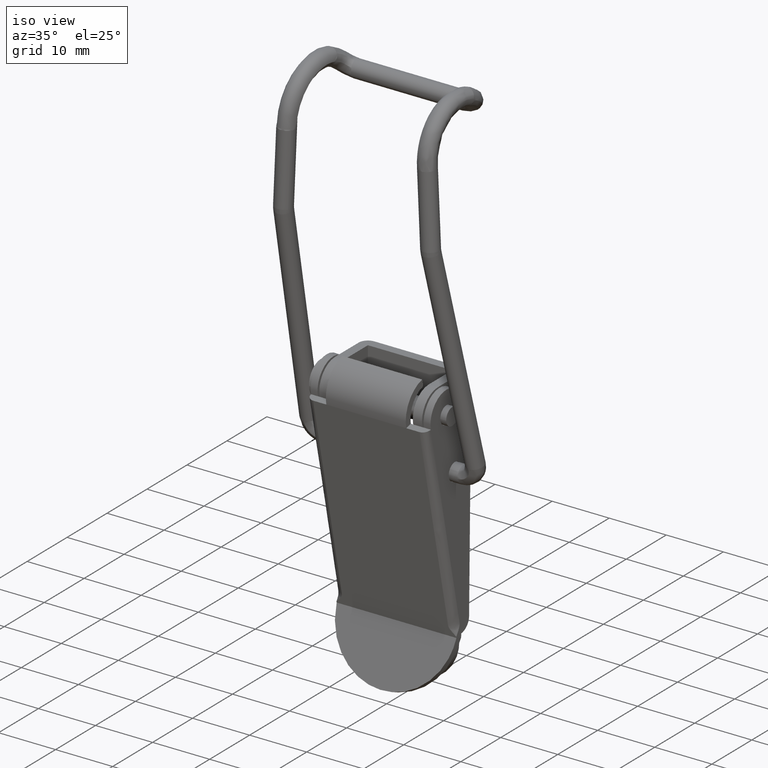
[diagram: clean part render]
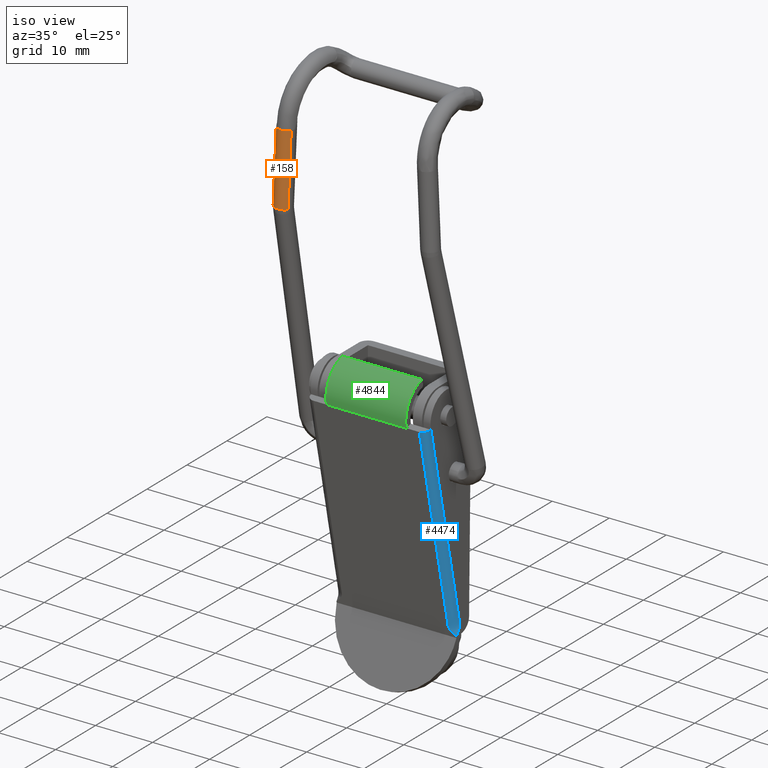
[diagram: same view with three faces highlighted in distinct colors, each labeled with its STEP entity id]
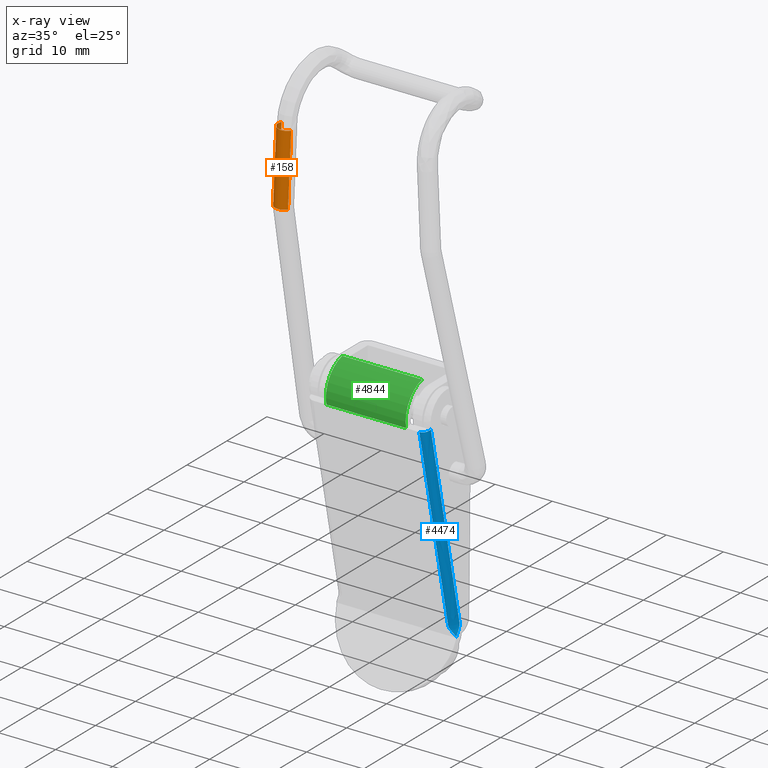
[diagram: x-ray of the same camera — body ghosted, the three highlighted faces saturated]
A machine part, iso view with three faces highlighted in distinct colors.
The next image is the same camera in x-ray (body ghosted, the three faces saturated) — at least one of them is partly hidden behind the body in this view.
Their STEP definitions:

[orange] entity #158 — the highlighted face is a freeform B-spline surface patch.
#44=CARTESIAN_POINT('',(-14.250537708566645,-6.728657390989591,29.514747356932155));
#45=CARTESIAN_POINT('',(-14.870743056928660,-8.001910873538105,29.541739741213647));
#46=CARTESIAN_POINT('',(-13.636246804663941,-8.694507485925259,29.488012379262980));
#47=CARTESIAN_POINT('',(-12.329007163122082,-9.427915745082894,29.431119102148088));
#48=CARTESIAN_POINT('',(-11.596292506796701,-8.119438643487545,29.399230122756911));
#49=CARTESIAN_POINT('',(-13.670756794046270,-6.728657390989591,42.836402099018599));
#50=CARTESIAN_POINT('',(-14.290962142408276,-8.001910873538105,42.863394483300091));
#51=CARTESIAN_POINT('',(-13.056465890143571,-8.694507485925259,42.809667121349413));
#52=CARTESIAN_POINT('',(-11.749226248601705,-9.427915745082894,42.752773844234532));
#53=CARTESIAN_POINT('',(-11.016511592276320,-8.119438643487545,42.720884864843342));
#61=(BOUNDED_SURFACE()B_SPLINE_SURFACE(2,1,((#44,#49),(#45,#50),(#46,#51),(#47,#52),(#48,#53)),.UNSPECIFIED.,.F.,.F.,.U.)B_SPLINE_SURFACE_WITH_KNOTS((3,2,3),(2,2),(3.204424506661589,4.712388980384690,6.283185307179586),(0.0,13.334265295703259),.UNSPECIFIED.)GEOMETRIC_REPRESENTATION_ITEM()RATIONAL_B_SPLINE_SURFACE(((0.977505800795127,0.977505800795127),(0.718822509939086,0.718822509939086),(1.0,1.0),(0.707106781186548,0.707106781186548),(1.0,1.0)))REPRESENTATION_ITEM('')SURFACE());
#62=CARTESIAN_POINT('',(-14.342784072439629,-7.752980337834663,29.836356073012880));
#63=VERTEX_POINT('',#62);
#64=CARTESIAN_POINT('',(-14.236741373962410,-6.728656900177660,29.831740915670078));
#65=VERTEX_POINT('',#64);
#66=CARTESIAN_POINT('',(-14.342784072439629,-7.752980337834663,29.836356073012880));
#67=CARTESIAN_POINT('',(-14.476769032806034,-7.221421898884255,29.842187324787322));
#68=CARTESIAN_POINT('',(-14.236741373962413,-6.728656900177660,29.831740915670071));
#76=(BOUNDED_CURVE()B_SPLINE_CURVE(2,(#66,#67,#68),.UNSPECIFIED.,.F.,.U.)B_SPLINE_CURVE_WITH_KNOTS((3,3),(0.500000000000000,0.612226226741794),.UNSPECIFIED.)CURVE()GEOMETRIC_REPRESENTATION_ITEM()RATIONAL_B_SPLINE_CURVE((1.0,0.868518796857231,0.855082708243936))REPRESENTATION_ITEM(''));
#77=EDGE_CURVE('',#63,#65,#76,.T.);
#78=ORIENTED_EDGE('',*,*,#77,.F.);
#79=CARTESIAN_POINT('',(-12.535323053613469,-8.843477984108532,29.757692316662279));
#80=VERTEX_POINT('',#79);
#81=CARTESIAN_POINT('',(-12.535323053613469,-8.843477984108532,29.757692316662283));
#82=CARTESIAN_POINT('',(-13.979240646903859,-9.195265914066582,29.820534049112268));
#83=CARTESIAN_POINT('',(-14.342784072439629,-7.752980337834663,29.836356073012880));
#91=(BOUNDED_CURVE()B_SPLINE_CURVE(2,(#81,#82,#83),.UNSPECIFIED.,.F.,.U.)B_SPLINE_CURVE_WITH_KNOTS((3,3),(0.251478909414957,0.500000000000000),.UNSPECIFIED.)CURVE()GEOMETRIC_REPRESENTATION_ITEM()RATIONAL_B_SPLINE_CURVE((0.996555199149981,0.708839431342068,1.0))REPRESENTATION_ITEM(''));
#92=EDGE_CURVE('',#80,#63,#91,.T.);
#93=ORIENTED_EDGE('',*,*,#92,.F.);
#94=CARTESIAN_POINT('',(-11.582495899211880,-8.119437729250720,29.716223672091690));
#95=VERTEX_POINT('',#94);
#96=CARTESIAN_POINT('',(-11.582495899211876,-8.119437729250720,29.716223672091690));
#97=CARTESIAN_POINT('',(-11.897817468302296,-8.682537873342625,29.729946996876105));
#98=CARTESIAN_POINT('',(-12.523133133203730,-8.840453889235842,29.757161790764670));
#99=CARTESIAN_POINT('',(-12.529221764380749,-8.841991500448366,29.757426778277129));
#100=CARTESIAN_POINT('',(-12.535323053613467,-8.843477984108532,29.757692316662279));
#108=(BOUNDED_CURVE()B_SPLINE_CURVE(2,(#96,#97,#98,#99,#100),.UNSPECIFIED.,.F.,.U.)B_SPLINE_CURVE_WITH_KNOTS((3,2,3),(0.120867736454969,0.250000000000000,0.251478909414957),.UNSPECIFIED.)CURVE()GEOMETRIC_REPRESENTATION_ITEM()RATIONAL_B_SPLINE_CURVE((0.853713433090381,0.848712142710515,1.0,0.998267349844479,0.996555199149981))REPRESENTATION_ITEM(''));
#109=EDGE_CURVE('',#95,#80,#108,.T.);
#110=ORIENTED_EDGE('',*,*,#109,.F.);
#111=CARTESIAN_POINT('',(-11.031982475052169,-8.119204663168635,42.375037008659461));
#112=VERTEX_POINT('',#111);
#113=CARTESIAN_POINT('',(-11.582495899211880,-8.119437729250720,29.716223672091690));
#114=CARTESIAN_POINT('',(-11.031982475052169,-8.119204663168635,42.375037008659461));
#115=QUASI_UNIFORM_CURVE('',1,(#113,#114),.UNSPECIFIED.,.F.,.U.);
#116=EDGE_CURVE('',#95,#112,#115,.T.);
#117=ORIENTED_EDGE('',*,*,#116,.T.);
#118=CARTESIAN_POINT('',(-13.791701619590119,-7.751084958118066,42.498604842236098));
#119=VERTEX_POINT('',#118);
#120=CARTESIAN_POINT('',(-11.031982475052169,-8.119204663168635,42.375037008659461));
#121=CARTESIAN_POINT('',(-11.038402842143389,-8.130660736163106,42.375208680900691));
#122=CARTESIAN_POINT('',(-11.044980448895490,-8.142030780206529,42.375388005488823));
#123=CARTESIAN_POINT('',(-11.252998500686861,-8.490455324821761,42.381164098016107));
#124=CARTESIAN_POINT('',(-11.591701600418091,-8.742642159629714,42.393532872679920));
#125=CARTESIAN_POINT('',(-12.352703676503280,-8.934706841463788,42.424845960602873));
#126=CARTESIAN_POINT('',(-12.770316529376739,-8.873401986308663,42.443597453104729));
#127=CARTESIAN_POINT('',(-13.443968277648120,-8.470732567827337,42.476702642169968));
#128=CARTESIAN_POINT('',(-13.695858938271851,-8.131847575419689,42.490852482517063));
#129=CARTESIAN_POINT('',(-13.791701619590119,-7.751084958118066,42.498604842236098));
#130=B_SPLINE_CURVE_WITH_KNOTS('',3,(#120,#121,#122,#123,#124,#125,#126,#127,#128,#129),.UNSPECIFIED.,.F.,.U.,(4,2,2,2,4),(0.120817972179416,0.125000000000000,0.250000000000000,0.375000000000000,0.500000000000000),.UNSPECIFIED.);
#131=EDGE_CURVE('',#112,#119,#130,.T.);
#132=ORIENTED_EDGE('',*,*,#131,.T.);
#133=CARTESIAN_POINT('',(-13.822939435539629,-7.190138823374258,42.505240303371082));
#134=VERTEX_POINT('',#133);
#135=CARTESIAN_POINT('',(-13.791701619590119,-7.751084958118066,42.498604842236098));
#136=CARTESIAN_POINT('',(-13.837695754896989,-7.568324288119245,42.502325527057572));
#137=CARTESIAN_POINT('',(-13.847469504875351,-7.376992464083711,42.504550454907992));
#138=CARTESIAN_POINT('',(-13.822939435539629,-7.190138823374258,42.505240303371082));
#139=B_SPLINE_CURVE_WITH_KNOTS('',3,(#135,#136,#137,#138),.UNSPECIFIED.,.F.,.U.,(4,4),(0.500000000000000,0.560000160959176),.UNSPECIFIED.);
#140=EDGE_CURVE('',#119,#134,#139,.T.);
#141=ORIENTED_EDGE('',*,*,#140,.T.);
#142=CARTESIAN_POINT('',(-13.685508653856200,-6.728528272672554,42.503601942961780));
#143=VERTEX_POINT('',#142);
#144=CARTESIAN_POINT('',(-13.822939435539629,-7.190138823374258,42.505240303371082));
#145=CARTESIAN_POINT('',(-13.801856755465421,-7.030261117678777,42.505826869376797));
#146=CARTESIAN_POINT('',(-13.755644474497959,-6.873664734584837,42.505288900585199));
#147=CARTESIAN_POINT('',(-13.685508653856200,-6.728528272672554,42.503601942961780));
#148=B_SPLINE_CURVE_WITH_KNOTS('',3,(#144,#145,#146,#147),.UNSPECIFIED.,.F.,.U.,(4,4),(0.560000160959176,0.611351848409307),.UNSPECIFIED.);
#149=EDGE_CURVE('',#134,#143,#148,.T.);
#150=ORIENTED_EDGE('',*,*,#149,.T.);
#151=CARTESIAN_POINT('',(-14.236741373962410,-6.728656900177660,29.831740915670078));
#152=CARTESIAN_POINT('',(-13.685508653856200,-6.728528272672554,42.503601942961780));
#153=QUASI_UNIFORM_CURVE('',1,(#151,#152),.UNSPECIFIED.,.F.,.U.);
#154=EDGE_CURVE('',#65,#143,#153,.T.);
#155=ORIENTED_EDGE('',*,*,#154,.F.);
#156=EDGE_LOOP('',(#78,#93,#110,#117,#132,#141,#150,#155));
#157=FACE_OUTER_BOUND('',#156,.T.);
#158=ADVANCED_FACE('',(#157),#61,.T.);

[blue] entity #4474 — the highlighted face is a freeform B-spline surface patch.
#4404=CARTESIAN_POINT('',(10.500000000000000,2.464058606142225,-36.093305499922749));
#4405=CARTESIAN_POINT('',(10.500000000000007,2.464058606142224,-36.093305499922742));
#4406=CARTESIAN_POINT('',(10.500000000000000,2.464058606142225,-36.093305499922749));
#4407=CARTESIAN_POINT('',(9.900000000000000,2.344261721095435,-35.537795750713848));
#4408=CARTESIAN_POINT('',(10.500000000000007,2.344261721095434,-35.537795750713840));
#4409=CARTESIAN_POINT('',(10.500000000000000,2.930778469320305,-35.411312138922753));
#4410=CARTESIAN_POINT('',(9.299999999999999,2.224464836048645,-34.982286001504953));
#4411=CARTESIAN_POINT('',(10.500000000000007,2.224464836048646,-34.982286001504946));
#4412=CARTESIAN_POINT('',(10.500000000000000,3.397498332498385,-34.729318777922749));
#4413=CARTESIAN_POINT('',(9.299999999999999,2.104667951001855,-34.426776252296051));
#4414=CARTESIAN_POINT('',(10.500000000000007,2.104667951001854,-34.426776252296051));
#4415=CARTESIAN_POINT('',(10.500000000000000,3.277701447451595,-34.173809028713848));
#4416=CARTESIAN_POINT('',(9.299999999999999,-0.291269749933953,-23.316581268118291));
#4417=CARTESIAN_POINT('',(10.500000000000009,-0.291269749933952,-23.316581268118284));
#4418=CARTESIAN_POINT('',(10.500000000000000,0.881763746515789,-23.063614044536081));
#4419=CARTESIAN_POINT('',(9.299999999999999,-2.687207450869760,-12.206386283940510));
#4420=CARTESIAN_POINT('',(10.500000000000009,-2.687207450869757,-12.206386283940516));
#4421=CARTESIAN_POINT('',(10.500000000000000,-1.514173954420017,-11.953419060358311));
#4422=CARTESIAN_POINT('',(9.299999999999999,-5.083145151805567,-1.096191299762739));
#4423=CARTESIAN_POINT('',(10.500000000000009,-5.083145151805564,-1.096191299762748));
#4424=CARTESIAN_POINT('',(10.500000000000000,-3.910111655355824,-0.843224076180532));
#4432=(BOUNDED_SURFACE()B_SPLINE_SURFACE(2,3,((#4404,#4407,#4410,#4413,#4416,#4419,#4422),(#4405,#4408,#4411,#4414,#4417,#4420,#4423),(#4406,#4409,#4412,#4415,#4418,#4421,#4424)),.UNSPECIFIED.,.F.,.F.,.U.)B_SPLINE_SURFACE_WITH_KNOTS((3,3),(4,3,4),(0.0,1.0),(0.0,0.015873015873016,0.333333333333333),.UNSPECIFIED.)GEOMETRIC_REPRESENTATION_ITEM()RATIONAL_B_SPLINE_SURFACE(((1.0,1.0,1.0,1.0,1.0,1.0,1.0),(0.707106781186548,0.707106781186548,0.707106781186548,0.707106781186548,0.707106781186548,0.707106781186548,0.707106781186548),(1.0,1.0,1.0,1.0,1.0,1.0,1.0)))REPRESENTATION_ITEM('')SURFACE());
#4433=CARTESIAN_POINT('',(9.299999999999999,-5.083145151805570,-1.096191299762750));
#4434=VERTEX_POINT('',#4433);
#4435=CARTESIAN_POINT('',(10.500000000000000,-3.910111665725710,-0.843224078416824));
#4436=VERTEX_POINT('',#4435);
#4437=CARTESIAN_POINT('',(9.299999999999999,-5.083145151805563,-1.096191299762748));
#4438=CARTESIAN_POINT('',(10.500000000000009,-5.083145151805561,-1.096191299762756));
#4439=CARTESIAN_POINT('',(10.500000000000000,-3.910111665725710,-0.843224078416824));
#4447=(BOUNDED_CURVE()B_SPLINE_CURVE(2,(#4437,#4438,#4439),.UNSPECIFIED.,.F.,.U.)CURVE()GEOMETRIC_REPRESENTATION_ITEM()QUASI_UNIFORM_CURVE()RATIONAL_B_SPLINE_CURVE((1.0,0.707106781186548,1.0))REPRESENTATION_ITEM(''));
#4448=EDGE_CURVE('',#4434,#4436,#4447,.T.);
#4449=ORIENTED_EDGE('',*,*,#4448,.F.);
#4450=CARTESIAN_POINT('',(10.500000000000000,2.464058606142225,-36.093305499922749));
#4451=VERTEX_POINT('',#4450);
#4452=CARTESIAN_POINT('',(10.500000000000000,2.464058606142225,-36.093305499922749));
#4453=CARTESIAN_POINT('',(9.900000000000000,2.344261721095435,-35.537795750713848));
#4454=CARTESIAN_POINT('',(9.299999999999999,2.224464836048645,-34.982286001504953));
#4455=CARTESIAN_POINT('',(9.299999999999999,2.104667951001855,-34.426776252296051));
#4456=CARTESIAN_POINT('',(9.299999999999999,-0.291269749933952,-23.316581268118298));
#4457=CARTESIAN_POINT('',(9.299999999999999,-2.687207450869756,-12.206386283940530));
#4458=CARTESIAN_POINT('',(9.299999999999999,-5.083145151805561,-1.096191299762762));
#4459=B_SPLINE_CURVE_WITH_KNOTS('',3,(#4452,#4453,#4454,#4455,#4456,#4457,#4458),.UNSPECIFIED.,.F.,.U.,(4,3,4),(0.0,0.015873015873016,0.333333333333333),.UNSPECIFIED.);
#4460=EDGE_CURVE('',#4451,#4434,#4459,.T.);
#4461=ORIENTED_EDGE('',*,*,#4460,.F.);
#4462=CARTESIAN_POINT('',(10.500000000000000,-3.910111665725710,-0.843224078416824));
#4463=CARTESIAN_POINT('',(10.500000000000000,-1.514173954420017,-11.953419060358311));
#4464=CARTESIAN_POINT('',(10.500000000000000,0.881763746515789,-23.063614044536081));
#4465=CARTESIAN_POINT('',(10.500000000000000,3.277701447451595,-34.173809028713848));
#4466=CARTESIAN_POINT('',(10.500000000000000,3.397498332498385,-34.729318777922749));
#4467=CARTESIAN_POINT('',(10.500000000000000,2.930778469320305,-35.411312138922753));
#4468=CARTESIAN_POINT('',(10.500000000000000,2.464058606142225,-36.093305499922749));
#4469=B_SPLINE_CURVE_WITH_KNOTS('',3,(#4462,#4463,#4464,#4465,#4466,#4467,#4468),.UNSPECIFIED.,.F.,.U.,(4,3,4),(0.0,0.317460317460317,0.333333333333333),.UNSPECIFIED.);
#4470=EDGE_CURVE('',#4436,#4451,#4469,.T.);
#4471=ORIENTED_EDGE('',*,*,#4470,.F.);
#4472=EDGE_LOOP('',(#4449,#4461,#4471));
#4473=FACE_OUTER_BOUND('',#4472,.T.);
#4474=ADVANCED_FACE('',(#4473),#4432,.T.);

[green] entity #4844 — the highlighted face is a freeform B-spline surface patch.
#4676=CARTESIAN_POINT('',(-7.0,-1.096191302189592,5.083145151282210));
#4677=VERTEX_POINT('',#4676);
#4678=CARTESIAN_POINT('',(-7.0,-5.083145151805570,-1.096191299762750));
#4679=VERTEX_POINT('',#4678);
#4680=CARTESIAN_POINT('',(-7.0,-1.096191302189592,5.083145151282214));
#4681=CARTESIAN_POINT('',(-7.000000000000001,-6.179336451044963,3.986953849615977));
#4682=CARTESIAN_POINT('',(-7.0,-5.083145151805568,-1.096191299762749));
#4690=(BOUNDED_CURVE()B_SPLINE_CURVE(2,(#4680,#4681,#4682),.UNSPECIFIED.,.F.,.U.)CURVE()GEOMETRIC_REPRESENTATION_ITEM()QUASI_UNIFORM_CURVE()RATIONAL_B_SPLINE_CURVE((1.0,0.707106781355344,1.0))REPRESENTATION_ITEM(''));
#4691=EDGE_CURVE('',#4677,#4679,#4690,.T.);
#4728=CARTESIAN_POINT('',(7.0,-1.096191302189592,5.083145151282210));
#4729=VERTEX_POINT('',#4728);
#4730=CARTESIAN_POINT('',(7.0,-5.083145151805570,-1.096191299762750));
#4731=VERTEX_POINT('',#4730);
#4732=CARTESIAN_POINT('',(7.0,-1.096191302189592,5.083145151282214));
#4733=CARTESIAN_POINT('',(7.000000000000001,-6.179336451044963,3.986953849615977));
#4734=CARTESIAN_POINT('',(7.0,-5.083145151805568,-1.096191299762749));
#4742=(BOUNDED_CURVE()B_SPLINE_CURVE(2,(#4732,#4733,#4734),.UNSPECIFIED.,.F.,.U.)CURVE()GEOMETRIC_REPRESENTATION_ITEM()QUASI_UNIFORM_CURVE()RATIONAL_B_SPLINE_CURVE((1.0,0.707106781355344,1.0))REPRESENTATION_ITEM(''));
#4743=EDGE_CURVE('',#4729,#4731,#4742,.T.);
#4781=CARTESIAN_POINT('',(7.0,-1.096191302189592,5.083145151282210));
#4782=CARTESIAN_POINT('',(-7.0,-1.096191302189592,5.083145151282210));
#4783=QUASI_UNIFORM_CURVE('',1,(#4781,#4782),.UNSPECIFIED.,.F.,.U.);
#4784=EDGE_CURVE('',#4729,#4677,#4783,.T.);
#4820=CARTESIAN_POINT('',(7.350000000000001,-0.962754434502077,5.110098227905855));
#4821=CARTESIAN_POINT('',(-7.358750000000002,-0.962754434502077,5.110098227905855));
#4822=CARTESIAN_POINT('',(7.350000000000002,-6.591728045456848,4.049586460040534));
#4823=CARTESIAN_POINT('',(-7.358750000000002,-6.591728045456848,4.049586460040534));
#4824=CARTESIAN_POINT('',(7.350000000000001,-4.993477465870710,-1.450924807783447));
#4825=CARTESIAN_POINT('',(-7.358750000000002,-4.993477465870710,-1.450924807783447));
#4833=(BOUNDED_SURFACE()B_SPLINE_SURFACE(1,2,((#4820,#4822,#4824),(#4821,#4823,#4825)),.UNSPECIFIED.,.F.,.F.,.U.)B_SPLINE_SURFACE_WITH_KNOTS((2,2),(3,3),(0.0,14.708750000000000),(0.0,9.209940190122962),.UNSPECIFIED.)GEOMETRIC_REPRESENTATION_ITEM()RATIONAL_B_SPLINE_SURFACE(((1.0,0.670944223123985,0.996392648669999),(1.0,0.670944223123985,0.996392648669999)))REPRESENTATION_ITEM('')SURFACE());
#4834=ORIENTED_EDGE('',*,*,#4691,.T.);
#4835=CARTESIAN_POINT('',(7.0,-5.083145151805570,-1.096191299762750));
#4836=CARTESIAN_POINT('',(-7.0,-5.083145151805570,-1.096191299762750));
#4837=QUASI_UNIFORM_CURVE('',1,(#4835,#4836),.UNSPECIFIED.,.F.,.U.);
#4838=EDGE_CURVE('',#4731,#4679,#4837,.T.);
#4839=ORIENTED_EDGE('',*,*,#4838,.F.);
#4840=ORIENTED_EDGE('',*,*,#4743,.F.);
#4841=ORIENTED_EDGE('',*,*,#4784,.T.);
#4842=EDGE_LOOP('',(#4834,#4839,#4840,#4841));
#4843=FACE_OUTER_BOUND('',#4842,.T.);
#4844=ADVANCED_FACE('',(#4843),#4833,.T.);